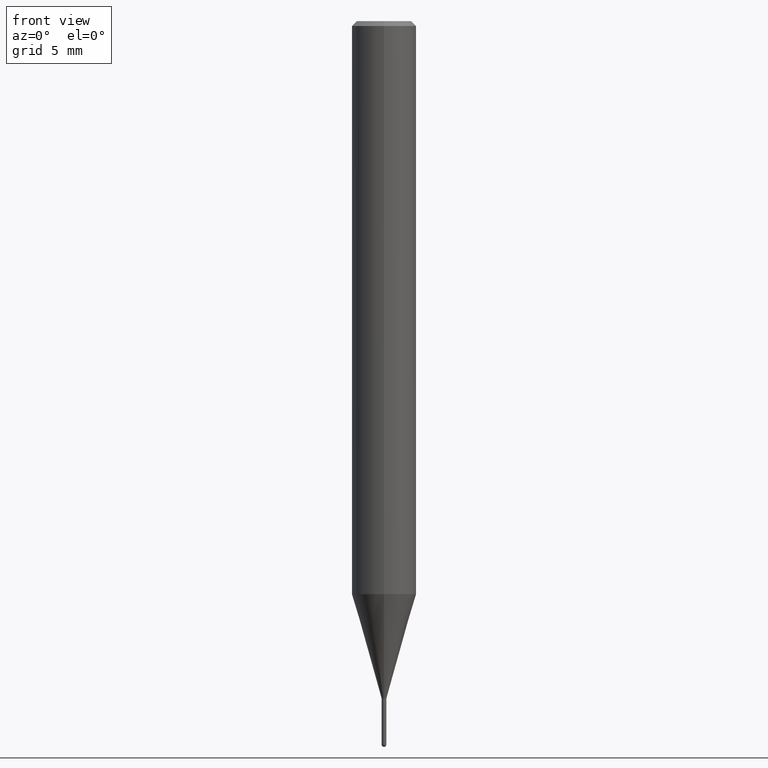
[diagram: clean part render]
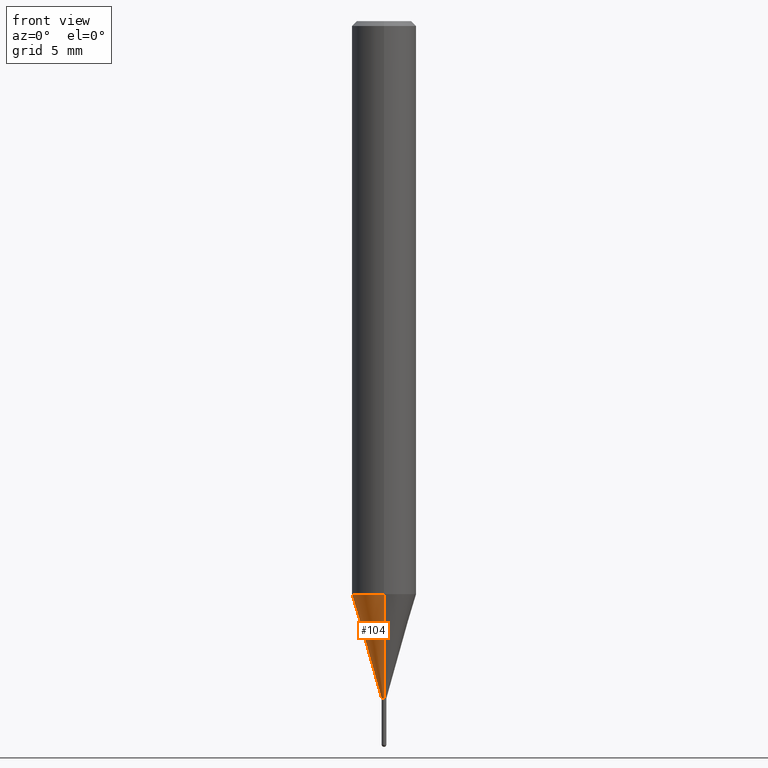
[diagram: same view with one face highlighted and labeled with its STEP entity id]
A machine part, front view. The second image highlights one B-rep face of the part: STEP entity #104.
In plain terms, the highlighted conical surface has half-angle 16 deg.
Its self-contained STEP definition (entity closure, byte-faithful):
#104=ADVANCED_FACE('',(#248),#249,.T.);
#130=VERTEX_POINT('',#277);
#132=EDGE_CURVE('',#130,#204,#279,.T.);
#164=EDGE_CURVE('',#186,#182,#317,.T.);
#180=EDGE_CURVE('',#186,#130,#334,.T.);
#182=VERTEX_POINT('',#336);
#186=VERTEX_POINT('',#340);
#198=EDGE_CURVE('',#204,#182,#353,.T.);
#204=VERTEX_POINT('',#360);
#248=FACE_OUTER_BOUND('',#399,.T.);
#249=CONICAL_SURFACE('',#400,1.07245,0.279258979430112);
#277=CARTESIAN_POINT('',(2.44915147732706E-016,-1.99995,-35.531));
#279=CIRCLE('',#442,1.99995);
#317=CIRCLE('',#486,0.14495);
#334=LINE('',#508,#509);
#336=CARTESIAN_POINT('',(0.0,0.14495,-42.0));
#340=CARTESIAN_POINT('',(1.77506690986554E-017,-0.14495,-42.0));
#353=LINE('',#534,#535);
#360=CARTESIAN_POINT('',(0.0,1.99995,-35.531));
#399=EDGE_LOOP('',(#585,#586,#587,#588));
#400=AXIS2_PLACEMENT_3D('',#589,#590,#591);
#442=AXIS2_PLACEMENT_3D('',#613,#614,#615);
#486=AXIS2_PLACEMENT_3D('',#674,#675,#676);
#508=CARTESIAN_POINT('',(1.31332908415681E-016,-1.07245,-38.7655));
#509=VECTOR('',#691,1.0);
#534=CARTESIAN_POINT('',(-1.31332908415681E-016,1.07245,-38.7655));
#535=VECTOR('',#710,1.0);
#585=ORIENTED_EDGE('',*,*,#198,.T.);
#586=ORIENTED_EDGE('',*,*,#164,.F.);
#587=ORIENTED_EDGE('',*,*,#180,.T.);
#588=ORIENTED_EDGE('',*,*,#132,.T.);
#589=CARTESIAN_POINT('',(0.0,0.0,-38.7655));
#590=DIRECTION('',(-0.0,-0.0,1.0));
#591=DIRECTION('',(0.0,1.0,0.0));
#613=CARTESIAN_POINT('',(0.0,0.0,-35.531));
#614=DIRECTION('',(0.0,0.0,-1.0));
#615=DIRECTION('',(0.0,1.0,0.0));
#674=CARTESIAN_POINT('',(0.0,0.0,-42.0));
#675=DIRECTION('',(0.0,0.0,-1.0));
#676=DIRECTION('',(0.0,1.0,0.0));
#691=DIRECTION('',(3.37554672384358E-017,-0.275643410905672,0.961259959648943));
#710=DIRECTION('',(3.37554672384358E-017,-0.275643410905672,-0.961259959648943));